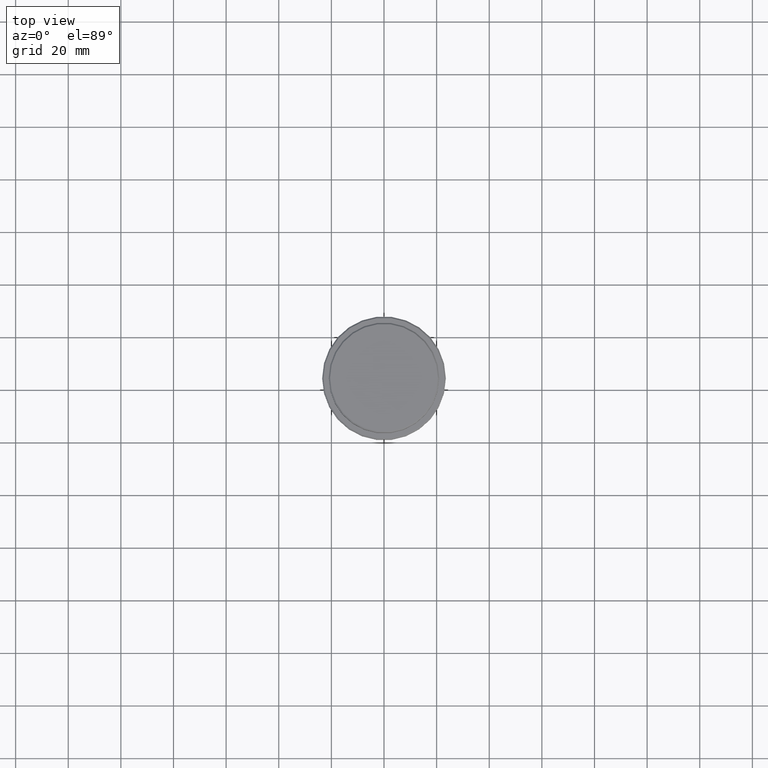
[diagram: clean part render]
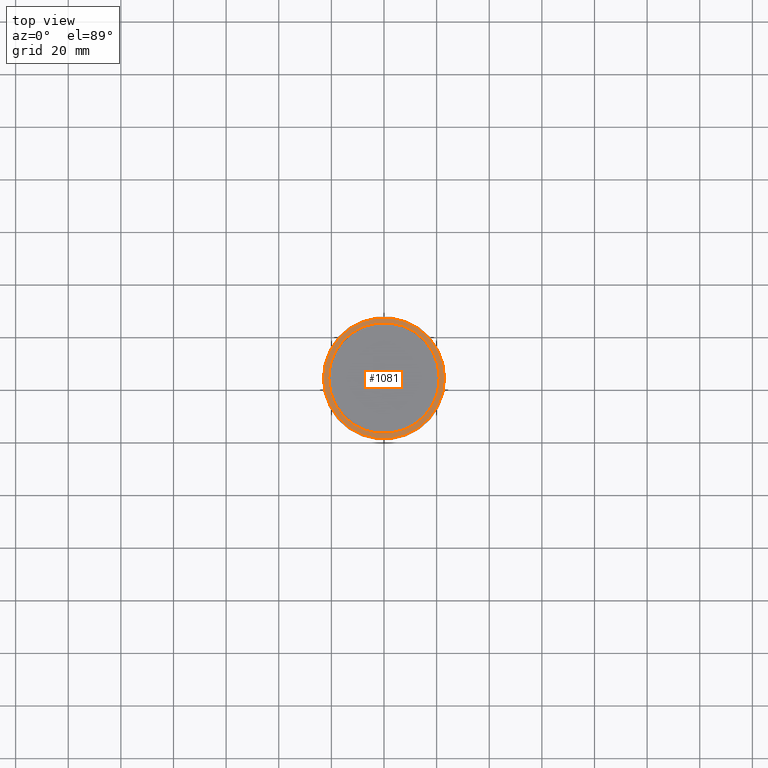
[diagram: same view with one face highlighted and labeled with its STEP entity id]
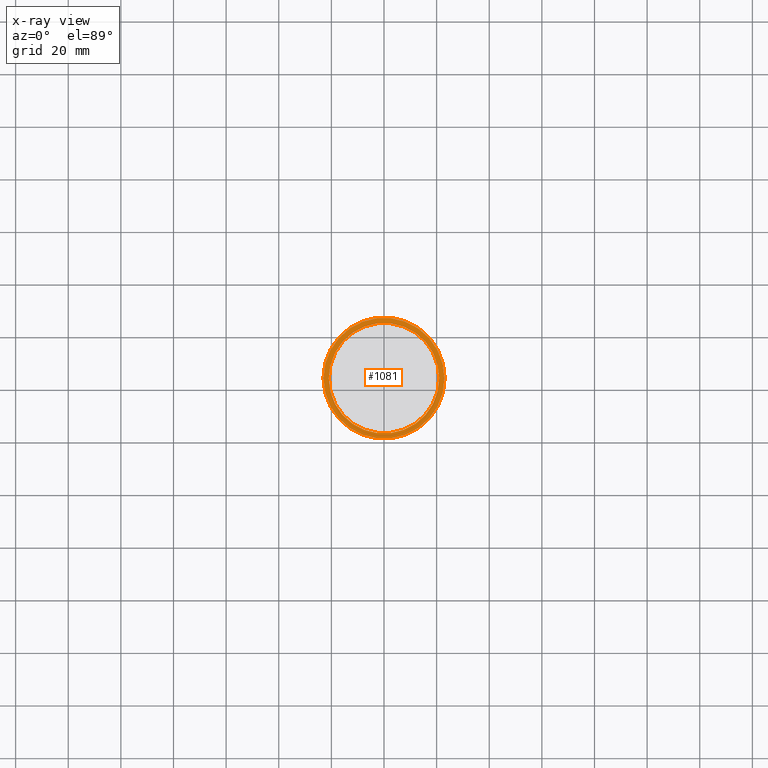
[diagram: x-ray of the same camera — body ghosted, the highlighted face saturated]
A machine part, top view. The second image highlights one B-rep face of the part: STEP entity #1081.
The next image is the same camera in x-ray: the body ghosted, the highlighted face saturated — about 0% of this face is hidden behind the body in this view.
In plain terms, the highlighted planar face has unit normal (0, -0, 1).
Its self-contained STEP definition (entity closure, byte-faithful):
#17 = VERTEX_POINT ( 'NONE', #1249 ) ;
#54 = EDGE_CURVE ( 'NONE', #17, #632, #137, .T. ) ;
#63 = ORIENTED_EDGE ( 'NONE', *, *, #472, .T. ) ;
#69 = CARTESIAN_POINT ( 'NONE',  ( 0.000000000000000000, 0.000000000000000000, -9.000000000000001776 ) ) ;
#91 = AXIS2_PLACEMENT_3D ( 'NONE', #917, #286, #1022 ) ;
#110 = CARTESIAN_POINT ( 'NONE',  ( 0.000000000000000000, 20.49999999999999645, -9.000000000000001776 ) ) ;
#137 = CIRCLE ( 'NONE', #91, 20.99999999999999289 ) ;
#214 = AXIS2_PLACEMENT_3D ( 'NONE', #1072, #970, #1186 ) ;
#218 = FACE_BOUND ( 'NONE', #1048, .T. ) ;
#227 = EDGE_CURVE ( 'NONE', #745, #659, #322, .T. ) ;
#286 = DIRECTION ( 'NONE',  ( 0.000000000000000000, 0.000000000000000000, -1.000000000000000000 ) ) ;
#292 = ORIENTED_EDGE ( 'NONE', *, *, #54, .T. ) ;
#300 = DIRECTION ( 'NONE',  ( 0.000000000000000000, 0.000000000000000000, -1.000000000000000000 ) ) ;
#322 = CIRCLE ( 'NONE', #774, 22.99999999999996803 ) ;
#323 = AXIS2_PLACEMENT_3D ( 'NONE', #69, #300, #1290 ) ;
#433 = PLANE ( 'NONE',  #955 ) ;
#450 = CARTESIAN_POINT ( 'NONE',  ( -20.99999999999999289, 2.571758278209440872E-15, -9.000000000000001776 ) ) ;
#472 = EDGE_CURVE ( 'NONE', #632, #17, #1178, .T. ) ;
#532 = DIRECTION ( 'NONE',  ( 1.000000000000000000, 0.000000000000000000, 0.000000000000000000 ) ) ;
#553 = FACE_OUTER_BOUND ( 'NONE', #1011, .T. ) ;
#632 = VERTEX_POINT ( 'NONE', #450 ) ;
#659 = VERTEX_POINT ( 'NONE', #1333 ) ;
#745 = VERTEX_POINT ( 'NONE', #1141 ) ;
#760 = CARTESIAN_POINT ( 'NONE',  ( 0.000000000000000000, 0.000000000000000000, -9.000000000000001776 ) ) ;
#772 = ORIENTED_EDGE ( 'NONE', *, *, #227, .T. ) ;
#774 = AXIS2_PLACEMENT_3D ( 'NONE', #760, #871, #1343 ) ;
#821 = CIRCLE ( 'NONE', #214, 22.99999999999996803 ) ;
#871 = DIRECTION ( 'NONE',  ( -0.000000000000000000, -0.000000000000000000, 1.000000000000000000 ) ) ;
#887 = ORIENTED_EDGE ( 'NONE', *, *, #1040, .T. ) ;
#917 = CARTESIAN_POINT ( 'NONE',  ( 0.000000000000000000, 0.000000000000000000, -9.000000000000001776 ) ) ;
#955 = AXIS2_PLACEMENT_3D ( 'NONE', #110, #1318, #532 ) ;
#970 = DIRECTION ( 'NONE',  ( -0.000000000000000000, -0.000000000000000000, 1.000000000000000000 ) ) ;
#1011 = EDGE_LOOP ( 'NONE', ( #887, #772 ) ) ;
#1022 = DIRECTION ( 'NONE',  ( 1.000000000000000000, 0.000000000000000000, 0.000000000000000000 ) ) ;
#1040 = EDGE_CURVE ( 'NONE', #659, #745, #821, .T. ) ;
#1048 = EDGE_LOOP ( 'NONE', ( #292, #63 ) ) ;
#1072 = CARTESIAN_POINT ( 'NONE',  ( 0.000000000000000000, 0.000000000000000000, -9.000000000000001776 ) ) ;
#1081 = ADVANCED_FACE ( 'NONE', ( #553, #218 ), #433, .T. ) ;
#1141 = CARTESIAN_POINT ( 'NONE',  ( 22.99999999999996803, 2.847303808017594561E-15, -9.000000000000001776 ) ) ;
#1178 = CIRCLE ( 'NONE', #323, 20.99999999999999289 ) ;
#1186 = DIRECTION ( 'NONE',  ( 1.000000000000000000, 0.000000000000000000, 0.000000000000000000 ) ) ;
#1249 = CARTESIAN_POINT ( 'NONE',  ( 20.99999999999999289, 0.000000000000000000, -9.000000000000001776 ) ) ;
#1290 = DIRECTION ( 'NONE',  ( 1.000000000000000000, 0.000000000000000000, 0.000000000000000000 ) ) ;
#1318 = DIRECTION ( 'NONE',  ( 0.000000000000000000, -0.000000000000000000, 1.000000000000000000 ) ) ;
#1333 = CARTESIAN_POINT ( 'NONE',  ( -22.99999999999996803, 0.000000000000000000, -9.000000000000001776 ) ) ;
#1343 = DIRECTION ( 'NONE',  ( 1.000000000000000000, 0.000000000000000000, 0.000000000000000000 ) ) ;